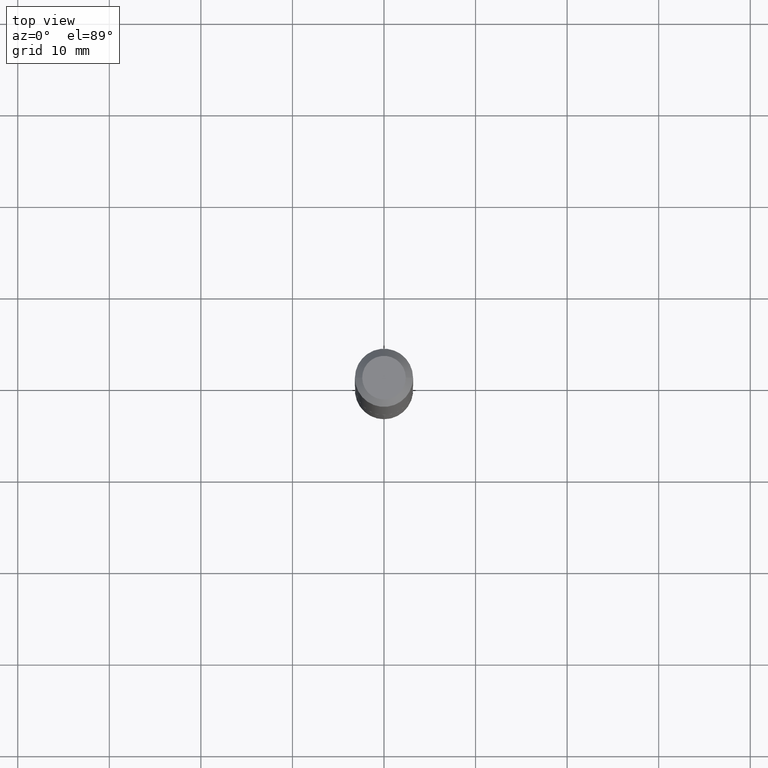
[diagram: clean part render]
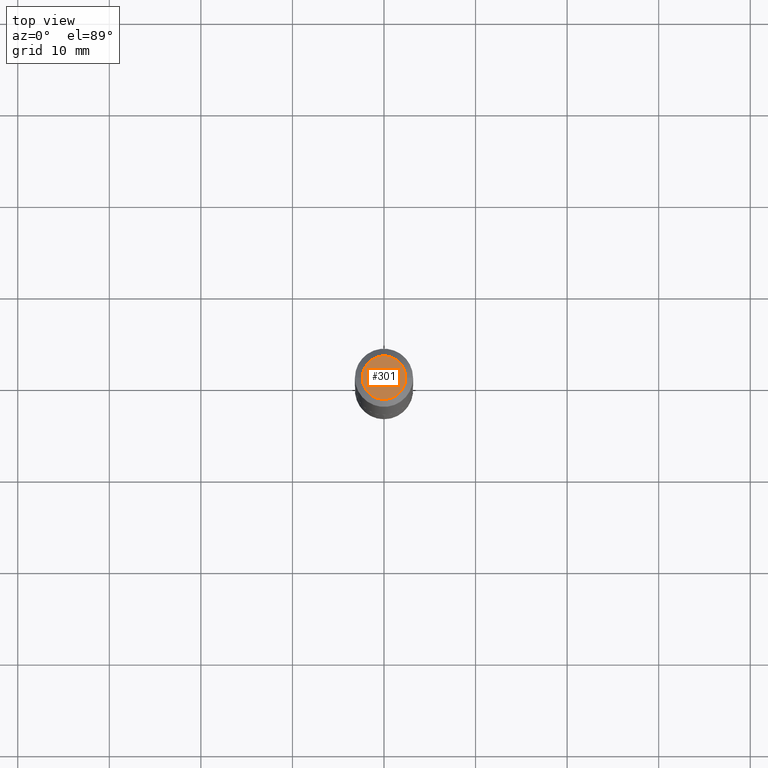
[diagram: same view with one face highlighted and labeled with its STEP entity id]
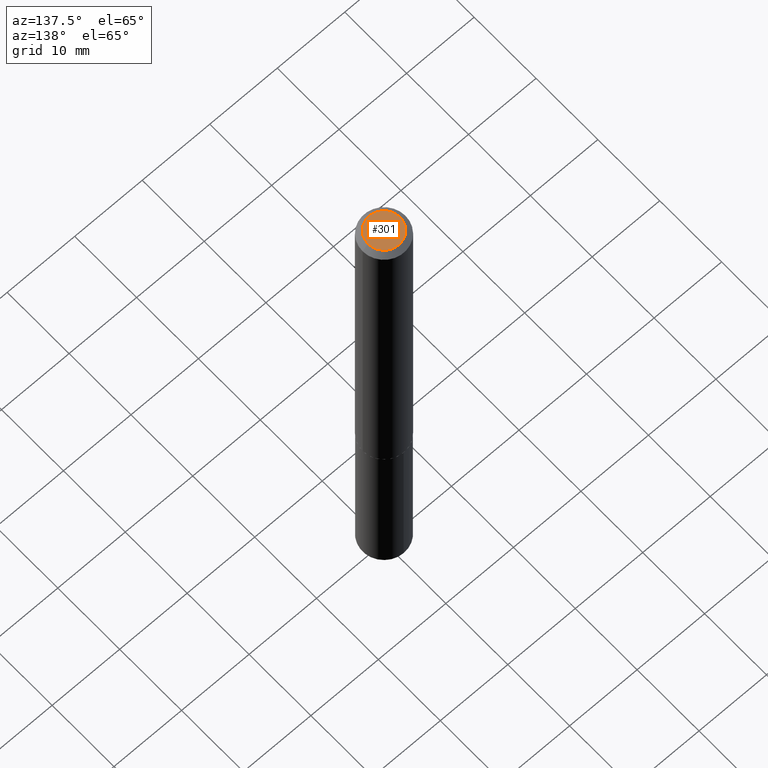
[diagram: same view with one face highlighted and labeled with its STEP entity id]
A machine part, top view. The second image highlights one B-rep face of the part: STEP entity #301.
A second angle (auxiliary view) of the same face is appended — the face is thin or edge-on in the first view.
In plain terms, the highlighted planar face has unit normal (0, -0, -1).
Its self-contained STEP definition (entity closure, byte-faithful):
#20 = DIRECTION ( 'NONE',  ( -2.445468806185136597E-29, 3.491481338843145583E-15, 1.000000000000000000 ) ) ;
#27 = CARTESIAN_POINT ( 'NONE',  ( -0.09374999999999998612, 7.092071469525108711E-16, -9.980871413055698252E-18 ) ) ;
#68 = CIRCLE ( 'NONE', #139, 0.09374999999999998612 ) ;
#81 = CARTESIAN_POINT ( 'NONE',  ( 2.440790969916101273E-46, -3.484802628406033486E-32, -9.980871413050928108E-18 ) ) ;
#106 = ORIENTED_EDGE ( 'NONE', *, *, #111, .T. ) ;
#111 = EDGE_CURVE ( 'NONE', #192, #144, #68, .T. ) ;
#119 = CARTESIAN_POINT ( 'NONE',  ( 2.440790969916101273E-46, -3.484802628406033486E-32, -9.980871413050928108E-18 ) ) ;
#139 = AXIS2_PLACEMENT_3D ( 'NONE', #81, #20, #387 ) ;
#144 = VERTEX_POINT ( 'NONE', #27 ) ;
#186 = CIRCLE ( 'NONE', #311, 0.09374999999999998612 ) ;
#192 = VERTEX_POINT ( 'NONE', #317 ) ;
#216 = DIRECTION ( 'NONE',  ( 2.438088387897960049E-29, -3.491481338843145188E-15, -1.000000000000000000 ) ) ;
#244 = DIRECTION ( 'NONE',  ( 1.000000000000000000, -6.982962677686266711E-15, 4.877000552086103125E-29 ) ) ;
#276 = CARTESIAN_POINT ( 'NONE',  ( 1.220395484958050637E-46, -1.742401314203016743E-32, -4.990435706525464054E-18 ) ) ;
#277 = PLANE ( 'NONE',  #375 ) ;
#301 = ADVANCED_FACE ( 'NONE', ( #333 ), #277, .F. ) ;
#305 = DIRECTION ( 'NONE',  ( -2.445468806185136597E-29, 3.491481338843145583E-15, 1.000000000000000000 ) ) ;
#311 = AXIS2_PLACEMENT_3D ( 'NONE', #119, #305, #244 ) ;
#317 = CARTESIAN_POINT ( 'NONE',  ( 0.09374999999999998612, -8.049213644256857164E-16, -9.980871413045825164E-18 ) ) ;
#322 = ORIENTED_EDGE ( 'NONE', *, *, #356, .T. ) ;
#333 = FACE_OUTER_BOUND ( 'NONE', #373, .T. ) ;
#356 = EDGE_CURVE ( 'NONE', #144, #192, #186, .T. ) ;
#362 = DIRECTION ( 'NONE',  ( -1.000000000000000000, 6.982962677686265922E-15, -4.876176775795935793E-29 ) ) ;
#373 = EDGE_LOOP ( 'NONE', ( #322, #106 ) ) ;
#375 = AXIS2_PLACEMENT_3D ( 'NONE', #276, #216, #362 ) ;
#387 = DIRECTION ( 'NONE',  ( 1.000000000000000000, -6.982962677686266711E-15, 4.877000552086103125E-29 ) ) ;